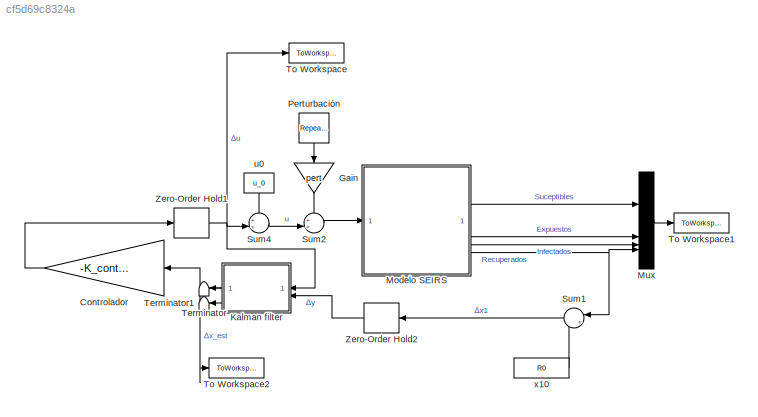
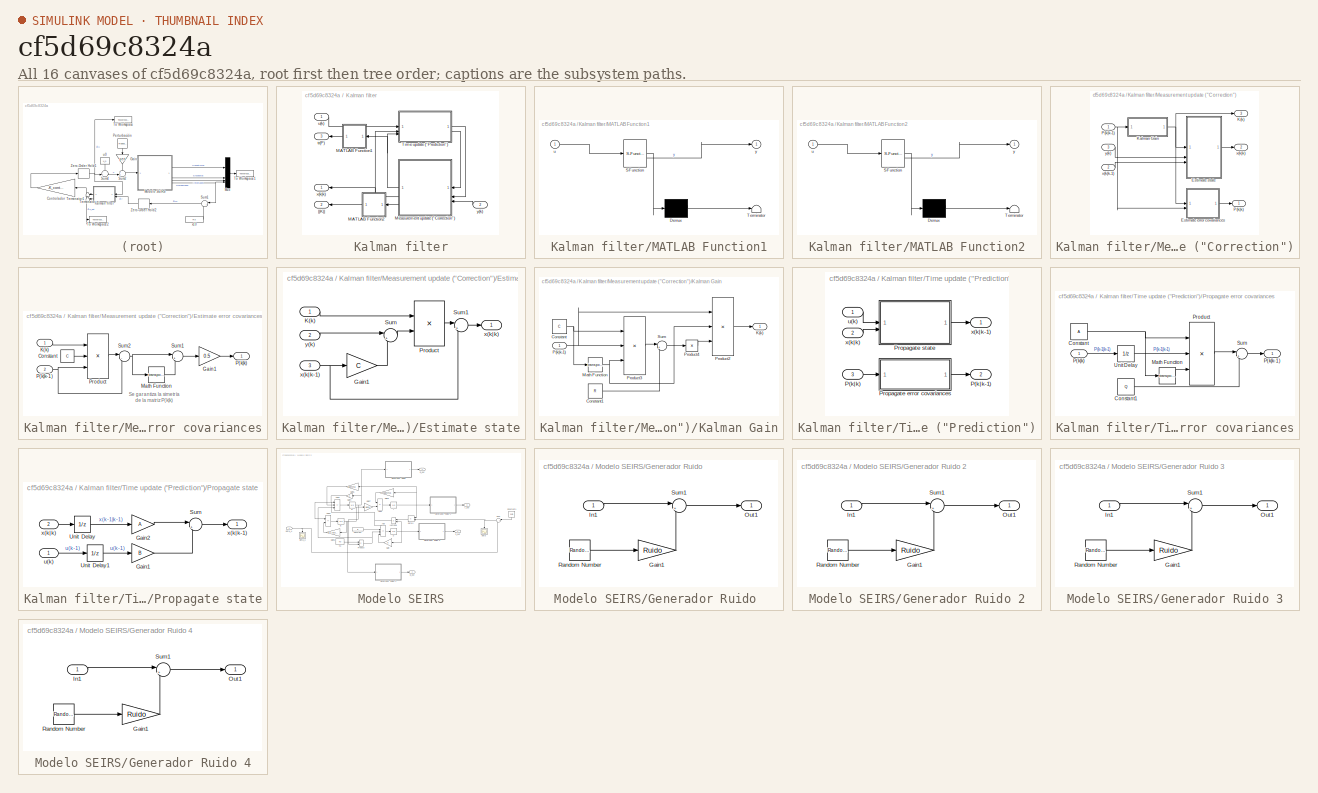
[diagram: thumbnail index - all 16 canvases of the model, root first then tree order]
MODEL slx_cf5d69c8324a
KIND model
CONFIG AbsTol = auto
CONFIG EnableMultiTasking = off
CONFIG FixedStep = auto
CONFIG MaxStep = auto
CONFIG MinStep = auto
CONFIG RelTol = 1e-3
CONFIG SampleTimeConstraint = Unconstrained
CONFIG SolverName = VariableStepAuto
CONFIG StartTime = 0.0
CONFIG StopTime = Dias
WORKSPACE source: mxarray member
WORKSPACE x = [0.0844291205376 0.0972801431163 0.171504041231 0.000911075297271]
BLOCK [Gain] Controlador
  Gain = -K_control
  Multiplication = Matrix(K*u)
BLOCK [Gain] Gain
  Gain = pert
  NameLocation = left
BLOCK [SubSystem] Kalman filter
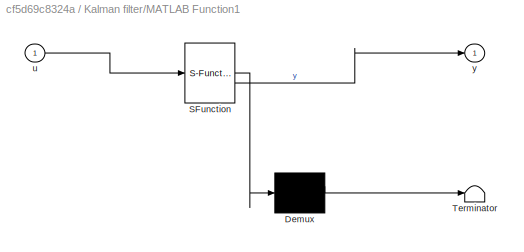
BLOCK [SubSystem] Kalman filter/MATLAB Function1
  ErrorFcn = Stateflow.Translate.translate
  LibrarySourceBlock = simulink/User-Defined\nFunctions/MATLAB Function
  NameLocation = top
  PermitHierarchicalResolution = ExplicitOnly
  SFBlockType = MATLAB Function
  TreatAsAtomicUnit = on
BLOCK [Demux] Kalman filter/MATLAB Function1/ Demux 
  Outputs = 1
BLOCK [S-Function] Kalman filter/MATLAB Function1/ SFunction 
  EnableBusSupport = on
  FunctionName = sf_sfun
  PortCounts = [1 2]
  SFcnIsStateOwnerBlock = off
  SFunctionDeploymentMode = off
  Tag = Stateflow S-Function 2
BLOCK [Terminator] Kalman filter/MATLAB Function1/ Terminator 
BLOCK [Inport] Kalman filter/MATLAB Function1/u
BLOCK [Outport] Kalman filter/MATLAB Function1/y
BLOCK [SubSystem] Kalman filter/MATLAB Function2
  ErrorFcn = Stateflow.Translate.translate
  LibrarySourceBlock = simulink/User-Defined\nFunctions/MATLAB Function
  NameLocation = top
  PermitHierarchicalResolution = ExplicitOnly
  SFBlockType = MATLAB Function
  TreatAsAtomicUnit = on
BLOCK [Demux] Kalman filter/MATLAB Function2/ Demux 
  Outputs = 1
BLOCK [S-Function] Kalman filter/MATLAB Function2/ SFunction 
  EnableBusSupport = on
  FunctionName = sf_sfun
  PortCounts = [1 2]
  SFcnIsStateOwnerBlock = off
  SFunctionDeploymentMode = off
  Tag = Stateflow S-Function 1
BLOCK [Terminator] Kalman filter/MATLAB Function2/ Terminator 
BLOCK [Inport] Kalman filter/MATLAB Function2/u
BLOCK [Outport] Kalman filter/MATLAB Function2/y
BLOCK [SubSystem] Kalman filter/Measurement update ("Correction")
BLOCK [SubSystem] Kalman filter/Measurement update ("Correction")/Estimate error covariances
BLOCK [Constant] Kalman filter/Measurement update ("Correction")/Estimate error covariances/Constant
  SampleTime = Ts
  Value = C
  VectorParams1D = off
BLOCK [Gain] Kalman filter/Measurement update ("Correction")/Estimate error covariances/Gain1
  Gain = 0.5
BLOCK [Inport] Kalman filter/Measurement update ("Correction")/Estimate error covariances/K(k)
BLOCK [Math] Kalman filter/Measurement update ("Correction")/Estimate error covariances/Math Function
  Operator = transpose
  SignedPower = on
BLOCK [Outport] Kalman filter/Measurement update ("Correction")/Estimate error covariances/P(k|k)
BLOCK [Inport] Kalman filter/Measurement update ("Correction")/Estimate error covariances/P(k|k-1)
  Port = 2
BLOCK [Product] Kalman filter/Measurement update ("Correction")/Estimate error covariances/Product
  Inputs = 3
  Multiplication = Matrix(*)
BLOCK [Sum] Kalman filter/Measurement update ("Correction")/Estimate error covariances/Sum1
  Inputs = |++
BLOCK [Sum] Kalman filter/Measurement update ("Correction")/Estimate error covariances/Sum2
  Inputs = |-+
BLOCK [SubSystem] Kalman filter/Measurement update ("Correction")/Estimate state
BLOCK [Gain] Kalman filter/Measurement update ("Correction")/Estimate state/Gain1
  Gain = C
  Multiplication = Matrix(K*u)
BLOCK [Inport] Kalman filter/Measurement update ("Correction")/Estimate state/K(k)
BLOCK [Product] Kalman filter/Measurement update ("Correction")/Estimate state/Product
  Multiplication = Matrix(*)
BLOCK [Sum] Kalman filter/Measurement update ("Correction")/Estimate state/Sum
  Inputs = |+-
BLOCK [Sum] Kalman filter/Measurement update ("Correction")/Estimate state/Sum1
  Inputs = |++
BLOCK [Outport] Kalman filter/Measurement update ("Correction")/Estimate state/x(k|k)
BLOCK [Inport] Kalman filter/Measurement update ("Correction")/Estimate state/x(k|k-1)
  Port = 3
BLOCK [Inport] Kalman filter/Measurement update ("Correction")/Estimate state/y(k)
  Port = 2
BLOCK [Outport] Kalman filter/Measurement update ("Correction")/K(k)
  Port = 3
BLOCK [SubSystem] Kalman filter/Measurement update ("Correction")/Kalman Gain
BLOCK [Constant] Kalman filter/Measurement update ("Correction")/Kalman Gain/Constant
  SampleTime = Ts
  Value = C
  VectorParams1D = off
BLOCK [Constant] Kalman filter/Measurement update ("Correction")/Kalman Gain/Constant1
  SampleTime = Ts
  Value = R
BLOCK [Outport] Kalman filter/Measurement update ("Correction")/Kalman Gain/K(k)
BLOCK [Math] Kalman filter/Measurement update ("Correction")/Kalman Gain/Math Function
  Operator = transpose
  SignedPower = on
BLOCK [Inport] Kalman filter/Measurement update ("Correction")/Kalman Gain/P(k|k-1)
BLOCK [Product] Kalman filter/Measurement update ("Correction")/Kalman Gain/Product2
  Inputs = 3
  Multiplication = Matrix(*)
BLOCK [Product] Kalman filter/Measurement update ("Correction")/Kalman Gain/Product3
  Inputs = 3
  Multiplication = Matrix(*)
BLOCK [Product] Kalman filter/Measurement update ("Correction")/Kalman Gain/Product4
  Inputs = /
  Multiplication = Matrix(*)
BLOCK [Sum] Kalman filter/Measurement update ("Correction")/Kalman Gain/Sum
  Inputs = |++
BLOCK [Outport] Kalman filter/Measurement update ("Correction")/P(k|k)
BLOCK [Inport] Kalman filter/Measurement update ("Correction")/P(k|k-1)
BLOCK [Outport] Kalman filter/Measurement update ("Correction")/x(k|k)
  Port = 2
BLOCK [Inport] Kalman filter/Measurement update ("Correction")/x(k|k-1)
  Port = 2
BLOCK [Inport] Kalman filter/Measurement update ("Correction")/y(k)
  Port = 3
BLOCK [SubSystem] Kalman filter/Time update ("Prediction")
  NameLocation = top
BLOCK [Inport] Kalman filter/Time update ("Prediction")/P(k|k)
  Port = 3
BLOCK [Outport] Kalman filter/Time update ("Prediction")/P(k|k-1)
  Port = 2
BLOCK [SubSystem] Kalman filter/Time update ("Prediction")/Propagate error covariances
BLOCK [Constant] Kalman filter/Time update ("Prediction")/Propagate error covariances/Constant
  SampleTime = Ts
  Value = A
BLOCK [Constant] Kalman filter/Time update ("Prediction")/Propagate error covariances/Constant1
  SampleTime = Ts
  Value = Q
BLOCK [Math] Kalman filter/Time update ("Prediction")/Propagate error covariances/Math Function
  Operator = transpose
  SignedPower = on
BLOCK [Inport] Kalman filter/Time update ("Prediction")/Propagate error covariances/P(k|k)
BLOCK [Outport] Kalman filter/Time update ("Prediction")/Propagate error covariances/P(k|k-1)
BLOCK [Product] Kalman filter/Time update ("Prediction")/Propagate error covariances/Product
  Inputs = 3
  Multiplication = Matrix(*)
  RndMeth = Zero
  SampleTime = Ts
BLOCK [Sum] Kalman filter/Time update ("Prediction")/Propagate error covariances/Sum
  Inputs = |++
BLOCK [UnitDelay] Kalman filter/Time update ("Prediction")/Propagate error covariances/Unit Delay
  HasFrameUpgradeWarning = on
  InitialCondition = P0
  SampleTime = Ts
BLOCK [SubSystem] Kalman filter/Time update ("Prediction")/Propagate state
BLOCK [Gain] Kalman filter/Time update ("Prediction")/Propagate state/Gain1
  Gain = B
  Multiplication = Matrix(K*u)
BLOCK [Gain] Kalman filter/Time update ("Prediction")/Propagate state/Gain2
  Gain = A
  Multiplication = Matrix(K*u)
BLOCK [Sum] Kalman filter/Time update ("Prediction")/Propagate state/Sum
  Inputs = |++
BLOCK [UnitDelay] Kalman filter/Time update ("Prediction")/Propagate state/Unit Delay
  HasFrameUpgradeWarning = on
  InitialCondition = x0
  SampleTime = Ts
BLOCK [UnitDelay] Kalman filter/Time update ("Prediction")/Propagate state/Unit Delay1
  HasFrameUpgradeWarning = on
  SampleTime = Ts
BLOCK [Inport] Kalman filter/Time update ("Prediction")/Propagate state/u(k)
BLOCK [Inport] Kalman filter/Time update ("Prediction")/Propagate state/x(k|k)
  Port = 2
BLOCK [Outport] Kalman filter/Time update ("Prediction")/Propagate state/x(k|k-1)
BLOCK [Inport] Kalman filter/Time update ("Prediction")/u(k)
BLOCK [Inport] Kalman filter/Time update ("Prediction")/x(k|k)
  Port = 2
BLOCK [Outport] Kalman filter/Time update ("Prediction")/x(k|k-1)
BLOCK [Outport] Kalman filter/tr(P)
  Port = 3
BLOCK [Inport] Kalman filter/u(k)
BLOCK [Outport] Kalman filter/x(k|k)
BLOCK [Inport] Kalman filter/y(k)
  NameLocation = top
  Port = 2
BLOCK [Outport] Kalman filter/||K||
  Port = 2
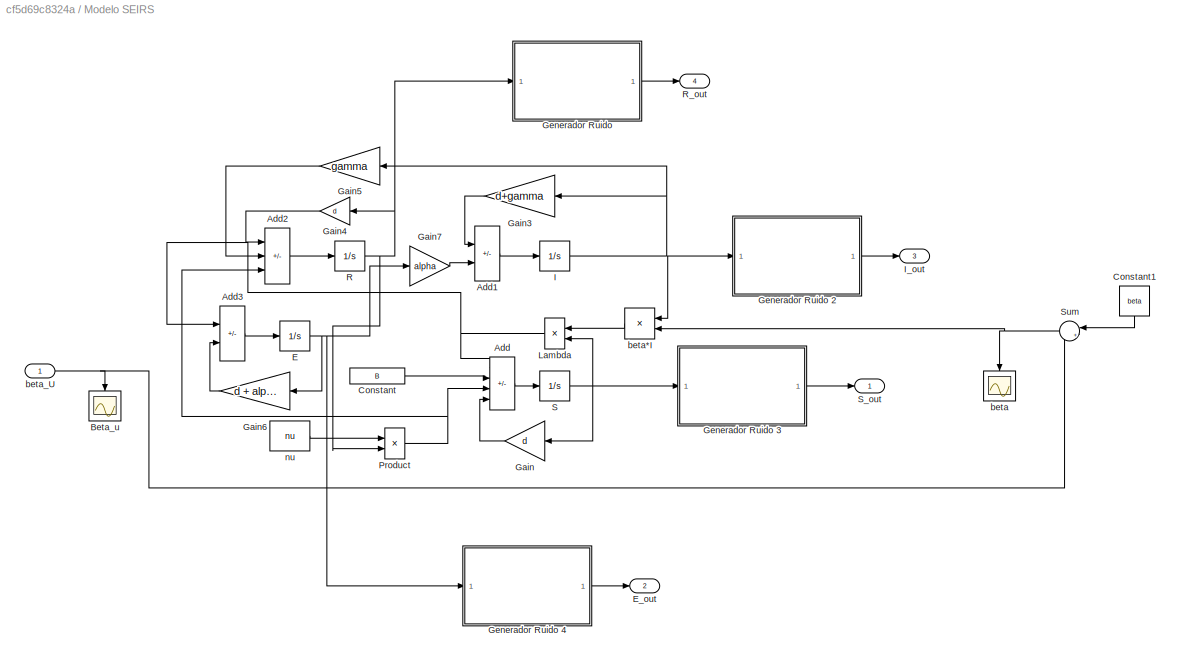
BLOCK [SubSystem] Modelo SEIRS
BLOCK [Sum] Modelo SEIRS/Add
  IconShape = rectangular
  Inputs = -++-
BLOCK [Sum] Modelo SEIRS/Add1
  IconShape = rectangular
  Inputs = -+
BLOCK [Sum] Modelo SEIRS/Add2
  IconShape = rectangular
  Inputs = -+-
BLOCK [Sum] Modelo SEIRS/Add3
  IconShape = rectangular
  Inputs = +-
BLOCK [Scope] Modelo SEIRS/Beta_u
  Floating = off
  NumInputPorts = 1
  ScopeSpecificationString = Simulink.scopes.TimeScopeBlockCfg('CurrentConfiguration', extmgr.ConfigurationSet(extmgr.Configuration('Core','General UI',true),extmgr.Configuration('Core','Source UI',true),extmgr.Configuration('Sources','WiredSimulink',true,'DataLoggingVariableName','ScopeData2'),extmgr.Configuration('Visuals','Time Domain',true,'SerializedDisplays',{struct('MinYLimReal','0.25','MaxYLimReal','0.75','YLabelReal'...<+1484ch>
BLOCK [Constant] Modelo SEIRS/Constant
  Value = B
BLOCK [Constant] Modelo SEIRS/Constant1
  NameLocation = left
  Value = beta
BLOCK [Integrator] Modelo SEIRS/E
  InitialCondition = ci(2)
  LimitOutput = on
  LowerSaturationLimit = 0
BLOCK [Outport] Modelo SEIRS/E_out
  Port = 2
BLOCK [Gain] Modelo SEIRS/Gain
  Gain = d
  NameLocation = top
BLOCK [Gain] Modelo SEIRS/Gain3
  Gain = d+gamma
  NameLocation = top
BLOCK [Gain] Modelo SEIRS/Gain4
  Gain = d
  NameLocation = top
BLOCK [Gain] Modelo SEIRS/Gain5
  Gain = gamma
  NameLocation = top
BLOCK [Gain] Modelo SEIRS/Gain6
  Gain = d + alpha
  NameLocation = top
BLOCK [Gain] Modelo SEIRS/Gain7
  Gain = alpha
BLOCK [SubSystem] Modelo SEIRS/Generador Ruido 
BLOCK [Gain] Modelo SEIRS/Generador Ruido /Gain1
  Gain = Ruido
BLOCK [Inport] Modelo SEIRS/Generador Ruido /In1
BLOCK [Outport] Modelo SEIRS/Generador Ruido /Out1
BLOCK [RandomNumber] Modelo SEIRS/Generador Ruido /Random Number
  SampleTime = TS
  Seed = 117
  Variance = Var_ruido
BLOCK [Sum] Modelo SEIRS/Generador Ruido /Sum1
  Inputs = |++
BLOCK [SubSystem] Modelo SEIRS/Generador Ruido 2
BLOCK [Gain] Modelo SEIRS/Generador Ruido 2/Gain1
  Gain = Ruido
BLOCK [Inport] Modelo SEIRS/Generador Ruido 2/In1
BLOCK [Outport] Modelo SEIRS/Generador Ruido 2/Out1
BLOCK [RandomNumber] Modelo SEIRS/Generador Ruido 2/Random Number
  SampleTime = TS
  Seed = 117
  Variance = Var_ruido
BLOCK [Sum] Modelo SEIRS/Generador Ruido 2/Sum1
  Inputs = |++
BLOCK [SubSystem] Modelo SEIRS/Generador Ruido 3
BLOCK [Gain] Modelo SEIRS/Generador Ruido 3/Gain1
  Gain = Ruido
BLOCK [Inport] Modelo SEIRS/Generador Ruido 3/In1
BLOCK [Outport] Modelo SEIRS/Generador Ruido 3/Out1
BLOCK [RandomNumber] Modelo SEIRS/Generador Ruido 3/Random Number
  SampleTime = TS
  Seed = 117
  Variance = Var_ruido
BLOCK [Sum] Modelo SEIRS/Generador Ruido 3/Sum1
  Inputs = |++
BLOCK [SubSystem] Modelo SEIRS/Generador Ruido 4
BLOCK [Gain] Modelo SEIRS/Generador Ruido 4/Gain1
  Gain = Ruido
BLOCK [Inport] Modelo SEIRS/Generador Ruido 4/In1
BLOCK [Outport] Modelo SEIRS/Generador Ruido 4/Out1
BLOCK [RandomNumber] Modelo SEIRS/Generador Ruido 4/Random Number
  SampleTime = TS
  Seed = 117
  Variance = Var_ruido
BLOCK [Sum] Modelo SEIRS/Generador Ruido 4/Sum1
  Inputs = |++
BLOCK [Integrator] Modelo SEIRS/I
  InitialCondition = ci(3)
  LimitOutput = on
  LowerSaturationLimit = 0
BLOCK [Outport] Modelo SEIRS/I_out 
  Port = 3
BLOCK [Product] Modelo SEIRS/Lambda
  NameLocation = top
BLOCK [Product] Modelo SEIRS/Product
BLOCK [Integrator] Modelo SEIRS/R
  InitialCondition = ci(4)
  LimitOutput = on
  LowerSaturationLimit = 0
BLOCK [Outport] Modelo SEIRS/R_out
  Port = 4
BLOCK [Integrator] Modelo SEIRS/S
  InitialCondition = ci(1)
  LimitOutput = on
  LowerSaturationLimit = 0
BLOCK [Outport] Modelo SEIRS/S_out
BLOCK [Sum] Modelo SEIRS/Sum
  Inputs = |++
  NameLocation = top
BLOCK [Scope] Modelo SEIRS/beta
  Floating = off
  NumInputPorts = 1
  ScopeSpecificationString = Simulink.scopes.TimeScopeBlockCfg('CurrentConfiguration', extmgr.ConfigurationSet(extmgr.Configuration('Core','General UI',true),extmgr.Configuration('Core','Source UI',true),extmgr.Configuration('Sources','WiredSimulink',true,'DataLoggingVariableName','ScopeData1'),extmgr.Configuration('Visuals','Time Domain',true,'SerializedDisplays',{struct('MinYLimReal','0.1','MaxYLimReal','0.3','YLabelReal','...<+1382ch>
BLOCK [Product] Modelo SEIRS/beta*I
  NameLocation = top
BLOCK [Inport] Modelo SEIRS/beta_U
BLOCK [Constant] Modelo SEIRS/nu
  Value = nu
BLOCK [Mux] Mux
  DisplayOption = bar
BLOCK [Reference] Perturbación  REF=simulink/Sources/Repeating
Sequence
Interpolated
  NameLocation = right
  SourceBlock = simulink/Sources/Repeating\nSequence\nInterpolated
  SourceType = Repeating Sequence Interpolated
BLOCK [Sum] Sum1
  Inputs = |+-
  NameLocation = top
BLOCK [Sum] Sum2
  Inputs = ++|
BLOCK [Sum] Sum4
  Inputs = ++|
BLOCK [Terminator] Terminator
  NameLocation = top
BLOCK [Terminator] Terminator1
  NameLocation = top
BLOCK [ToWorkspace] To Workspace
  MaxDataPoints = inf
  SampleTime = Ts
  SaveFormat = Structure With Time
  VariableName = du
BLOCK [ToWorkspace] To Workspace1
  MaxDataPoints = inf
  SampleTime = Ts
  SaveFormat = Structure With Time
  VariableName = x
BLOCK [ToWorkspace] To Workspace2
  MaxDataPoints = inf
  SampleTime = Ts
  SaveFormat = Structure With Time
  VariableName = dx_est
BLOCK [ZeroOrderHold] Zero-Order Hold1
  SampleTime = Ts
BLOCK [ZeroOrderHold] Zero-Order Hold2
  NameLocation = top
  SampleTime = Ts
BLOCK [Constant] u0
  NameLocation = left
  Value = u_0
BLOCK [Constant] x10
  NameLocation = top
  Value = R0
ANNOTATION Kalman filter/Measurement update ("Correction")/Estimate error covariances: Se garantiza la simetría de la matriz P(k|k)
LINE Controlador:1 -> Zero-Order Hold1:1
LINE Gain:1 -> Sum2:1
LINE Kalman filter/MATLAB Function1:1 -> Kalman filter/tr(P):1
LINE Kalman filter/MATLAB Function2:1 -> Kalman filter/||K||:1
LINE Kalman filter/Measurement update ("Correction")/Estimate error covariances/Constant:1 -> Kalman filter/Measurement update ("Correction")/Estimate error covariances/Product:2
LINE Kalman filter/Measurement update ("Correction")/Estimate error covariances/Gain1:1 -> Kalman filter/Measurement update ("Correction")/Estimate error covariances/P(k|k):1
LINE Kalman filter/Measurement update ("Correction")/Estimate error covariances/K(k):1 -> Kalman filter/Measurement update ("Correction")/Estimate error covariances/Product:1
LINE Kalman filter/Measurement update ("Correction")/Estimate error covariances/Math Function:1 -> Kalman filter/Measurement update ("Correction")/Estimate error covariances/Sum1:2
NET Kalman filter/Measurement update ("Correction")/Estimate error covariances/P(k|k-1):1 -> Kalman filter/Measurement update ("Correction")/Estimate error covariances/Product:3, Kalman filter/Measurement update ("Correction")/Estimate error covariances/Sum2:2
LINE Kalman filter/Measurement update ("Correction")/Estimate error covariances/Product:1 -> Kalman filter/Measurement update ("Correction")/Estimate error covariances/Sum2:1
LINE Kalman filter/Measurement update ("Correction")/Estimate error covariances/Sum1:1 -> Kalman filter/Measurement update ("Correction")/Estimate error covariances/Gain1:1
NET Kalman filter/Measurement update ("Correction")/Estimate error covariances/Sum2:1 -> Kalman filter/Measurement update ("Correction")/Estimate error covariances/Math Function:1, Kalman filter/Measurement update ("Correction")/Estimate error covariances/Sum1:1
LINE Kalman filter/Measurement update ("Correction")/Estimate error covariances:1 -> Kalman filter/Measurement update ("Correction")/P(k|k):1
LINE Kalman filter/Measurement update ("Correction")/Estimate state/Gain1:1 -> Kalman filter/Measurement update ("Correction")/Estimate state/Sum:2
LINE Kalman filter/Measurement update ("Correction")/Estimate state/K(k):1 -> Kalman filter/Measurement update ("Correction")/Estimate state/Product:1
LINE Kalman filter/Measurement update ("Correction")/Estimate state/Product:1 -> Kalman filter/Measurement update ("Correction")/Estimate state/Sum1:1
LINE Kalman filter/Measurement update ("Correction")/Estimate state/Sum1:1 -> Kalman filter/Measurement update ("Correction")/Estimate state/x(k|k):1
LINE Kalman filter/Measurement update ("Correction")/Estimate state/Sum:1 -> Kalman filter/Measurement update ("Correction")/Estimate state/Product:2
NET Kalman filter/Measurement update ("Correction")/Estimate state/x(k|k-1):1 -> Kalman filter/Measurement update ("Correction")/Estimate state/Gain1:1, Kalman filter/Measurement update ("Correction")/Estimate state/Sum1:2
LINE Kalman filter/Measurement update ("Correction")/Estimate state/y(k):1 -> Kalman filter/Measurement update ("Correction")/Estimate state/Sum:1
LINE Kalman filter/Measurement update ("Correction")/Estimate state:1 -> Kalman filter/Measurement update ("Correction")/x(k|k):1
LINE Kalman filter/Measurement update ("Correction")/Kalman Gain/Constant1:1 -> Kalman filter/Measurement update ("Correction")/Kalman Gain/Sum:2
NET Kalman filter/Measurement update ("Correction")/Kalman Gain/Constant:1 -> Kalman filter/Measurement update ("Correction")/Kalman Gain/Math Function:1, Kalman filter/Measurement update ("Correction")/Kalman Gain/Product3:1
NET Kalman filter/Measurement update ("Correction")/Kalman Gain/Math Function:1 -> Kalman filter/Measurement update ("Correction")/Kalman Gain/Product2:2, Kalman filter/Measurement update ("Correction")/Kalman Gain/Product3:3
NET Kalman filter/Measurement update ("Correction")/Kalman Gain/P(k|k-1):1 -> Kalman filter/Measurement update ("Correction")/Kalman Gain/Product2:1, Kalman filter/Measurement update ("Correction")/Kalman Gain/Product3:2
LINE Kalman filter/Measurement update ("Correction")/Kalman Gain/Product2:1 -> Kalman filter/Measurement update ("Correction")/Kalman Gain/K(k):1
LINE Kalman filter/Measurement update ("Correction")/Kalman Gain/Product3:1 -> Kalman filter/Measurement update ("Correction")/Kalman Gain/Sum:1
LINE Kalman filter/Measurement update ("Correction")/Kalman Gain/Product4:1 -> Kalman filter/Measurement update ("Correction")/Kalman Gain/Product2:3
LINE Kalman filter/Measurement update ("Correction")/Kalman Gain/Sum:1 -> Kalman filter/Measurement update ("Correction")/Kalman Gain/Product4:1
NET Kalman filter/Measurement update ("Correction")/Kalman Gain:1 -> Kalman filter/Measurement update ("Correction")/Estimate error covariances:1, Kalman filter/Measurement update ("Correction")/Estimate state:1, Kalman filter/Measurement update ("Correction")/K(k):1
NET Kalman filter/Measurement update ("Correction")/P(k|k-1):1 -> Kalman filter/Measurement update ("Correction")/Estimate error covariances:2, Kalman filter/Measurement update ("Correction")/Kalman Gain:1
LINE Kalman filter/Measurement update ("Correction")/x(k|k-1):1 -> Kalman filter/Measurement update ("Correction")/Estimate state:3
LINE Kalman filter/Measurement update ("Correction")/y(k):1 -> Kalman filter/Measurement update ("Correction")/Estimate state:2
NET Kalman filter/Measurement update ("Correction"):1 -> Kalman filter/MATLAB Function1:1, Kalman filter/Time update ("Prediction"):3
NET Kalman filter/Measurement update ("Correction"):2 -> Kalman filter/Time update ("Prediction"):2, Kalman filter/x(k|k):1
LINE Kalman filter/Measurement update ("Correction"):3 -> Kalman filter/MATLAB Function2:1
LINE Kalman filter/Time update ("Prediction")/P(k|k):1 -> Kalman filter/Time update ("Prediction")/Propagate error covariances:1
LINE Kalman filter/Time update ("Prediction")/Propagate error covariances/Constant1:1 -> Kalman filter/Time update ("Prediction")/Propagate error covariances/Sum:2
NET Kalman filter/Time update ("Prediction")/Propagate error covariances/Constant:1 -> Kalman filter/Time update ("Prediction")/Propagate error covariances/Math Function:1, Kalman filter/Time update ("Prediction")/Propagate error covariances/Product:1
LINE Kalman filter/Time update ("Prediction")/Propagate error covariances/Math Function:1 -> Kalman filter/Time update ("Prediction")/Propagate error covariances/Product:3
LINE Kalman filter/Time update ("Prediction")/Propagate error covariances/P(k|k):1 -> Kalman filter/Time update ("Prediction")/Propagate error covariances/Unit Delay:1
LINE Kalman filter/Time update ("Prediction")/Propagate error covariances/Product:1 -> Kalman filter/Time update ("Prediction")/Propagate error covariances/Sum:1
LINE Kalman filter/Time update ("Prediction")/Propagate error covariances/Sum:1 -> Kalman filter/Time update ("Prediction")/Propagate error covariances/P(k|k-1):1
LINE Kalman filter/Time update ("Prediction")/Propagate error covariances/Unit Delay:1 -> Kalman filter/Time update ("Prediction")/Propagate error covariances/Product:2
LINE Kalman filter/Time update ("Prediction")/Propagate error covariances:1 -> Kalman filter/Time update ("Prediction")/P(k|k-1):1
LINE Kalman filter/Time update ("Prediction")/Propagate state/Gain1:1 -> Kalman filter/Time update ("Prediction")/Propagate state/Sum:2
LINE Kalman filter/Time update ("Prediction")/Propagate state/Gain2:1 -> Kalman filter/Time update ("Prediction")/Propagate state/Sum:1
LINE Kalman filter/Time update ("Prediction")/Propagate state/Sum:1 -> Kalman filter/Time update ("Prediction")/Propagate state/x(k|k-1):1
LINE Kalman filter/Time update ("Prediction")/Propagate state/Unit Delay1:1 -> Kalman filter/Time update ("Prediction")/Propagate state/Gain1:1
LINE Kalman filter/Time update ("Prediction")/Propagate state/Unit Delay:1 -> Kalman filter/Time update ("Prediction")/Propagate state/Gain2:1
LINE Kalman filter/Time update ("Prediction")/Propagate state/u(k):1 -> Kalman filter/Time update ("Prediction")/Propagate state/Unit Delay1:1
LINE Kalman filter/Time update ("Prediction")/Propagate state/x(k|k):1 -> Kalman filter/Time update ("Prediction")/Propagate state/Unit Delay:1
LINE Kalman filter/Time update ("Prediction")/Propagate state:1 -> Kalman filter/Time update ("Prediction")/x(k|k-1):1
LINE Kalman filter/Time update ("Prediction")/u(k):1 -> Kalman filter/Time update ("Prediction")/Propagate state:1
LINE Kalman filter/Time update ("Prediction")/x(k|k):1 -> Kalman filter/Time update ("Prediction")/Propagate state:2
LINE Kalman filter/Time update ("Prediction"):1 -> Kalman filter/Measurement update ("Correction"):2
LINE Kalman filter/Time update ("Prediction"):2 -> Kalman filter/Measurement update ("Correction"):1
LINE Kalman filter/u(k):1 -> Kalman filter/Time update ("Prediction"):1
LINE Kalman filter/y(k):1 -> Kalman filter/Measurement update ("Correction"):3
NET Kalman filter:1 -> Controlador:1, To Workspace2:1
LINE Kalman filter:2 -> Terminator:1
LINE Kalman filter:3 -> Terminator1:1
LINE Modelo SEIRS/Add1:1 -> Modelo SEIRS/I:1
LINE Modelo SEIRS/Add2:1 -> Modelo SEIRS/R:1
LINE Modelo SEIRS/Add3:1 -> Modelo SEIRS/E:1
LINE Modelo SEIRS/Add:1 -> Modelo SEIRS/S:1
LINE Modelo SEIRS/Constant1:1 -> Modelo SEIRS/Sum:1
LINE Modelo SEIRS/Constant:1 -> Modelo SEIRS/Add:2
NET Modelo SEIRS/E:1 -> Modelo SEIRS/Gain6:1, Modelo SEIRS/Gain7:1, Modelo SEIRS/Generador Ruido 4:1
LINE Modelo SEIRS/Gain3:1 -> Modelo SEIRS/Add1:1
LINE Modelo SEIRS/Gain4:1 -> Modelo SEIRS/Add2:1
LINE Modelo SEIRS/Gain5:1 -> Modelo SEIRS/Add2:2
LINE Modelo SEIRS/Gain6:1 -> Modelo SEIRS/Add3:2
LINE Modelo SEIRS/Gain7:1 -> Modelo SEIRS/Add1:2
LINE Modelo SEIRS/Gain:1 -> Modelo SEIRS/Add:4
LINE Modelo SEIRS/Generador Ruido /Gain1:1 -> Modelo SEIRS/Generador Ruido /Sum1:2
LINE Modelo SEIRS/Generador Ruido /In1:1 -> Modelo SEIRS/Generador Ruido /Sum1:1
LINE Modelo SEIRS/Generador Ruido /Random Number:1 -> Modelo SEIRS/Generador Ruido /Gain1:1
LINE Modelo SEIRS/Generador Ruido /Sum1:1 -> Modelo SEIRS/Generador Ruido /Out1:1
LINE Modelo SEIRS/Generador Ruido 2/Gain1:1 -> Modelo SEIRS/Generador Ruido 2/Sum1:2
LINE Modelo SEIRS/Generador Ruido 2/In1:1 -> Modelo SEIRS/Generador Ruido 2/Sum1:1
LINE Modelo SEIRS/Generador Ruido 2/Random Number:1 -> Modelo SEIRS/Generador Ruido 2/Gain1:1
LINE Modelo SEIRS/Generador Ruido 2/Sum1:1 -> Modelo SEIRS/Generador Ruido 2/Out1:1
LINE Modelo SEIRS/Generador Ruido 2:1 -> Modelo SEIRS/I_out :1
LINE Modelo SEIRS/Generador Ruido 3/Gain1:1 -> Modelo SEIRS/Generador Ruido 3/Sum1:2
LINE Modelo SEIRS/Generador Ruido 3/In1:1 -> Modelo SEIRS/Generador Ruido 3/Sum1:1
LINE Modelo SEIRS/Generador Ruido 3/Random Number:1 -> Modelo SEIRS/Generador Ruido 3/Gain1:1
LINE Modelo SEIRS/Generador Ruido 3/Sum1:1 -> Modelo SEIRS/Generador Ruido 3/Out1:1
LINE Modelo SEIRS/Generador Ruido 3:1 -> Modelo SEIRS/S_out:1
LINE Modelo SEIRS/Generador Ruido 4/Gain1:1 -> Modelo SEIRS/Generador Ruido 4/Sum1:2
LINE Modelo SEIRS/Generador Ruido 4/In1:1 -> Modelo SEIRS/Generador Ruido 4/Sum1:1
LINE Modelo SEIRS/Generador Ruido 4/Random Number:1 -> Modelo SEIRS/Generador Ruido 4/Gain1:1
LINE Modelo SEIRS/Generador Ruido 4/Sum1:1 -> Modelo SEIRS/Generador Ruido 4/Out1:1
LINE Modelo SEIRS/Generador Ruido 4:1 -> Modelo SEIRS/E_out:1
LINE Modelo SEIRS/Generador Ruido :1 -> Modelo SEIRS/R_out:1
NET Modelo SEIRS/I:1 -> Modelo SEIRS/Gain3:1, Modelo SEIRS/Gain5:1, Modelo SEIRS/Generador Ruido 2:1, Modelo SEIRS/beta*I:1
NET Modelo SEIRS/Lambda:1 -> Modelo SEIRS/Add3:1, Modelo SEIRS/Add:1
NET Modelo SEIRS/Product:1 -> Modelo SEIRS/Add2:3, Modelo SEIRS/Add:3
NET Modelo SEIRS/R:1 -> Modelo SEIRS/Gain4:1, Modelo SEIRS/Generador Ruido :1, Modelo SEIRS/Product:2
NET Modelo SEIRS/S:1 -> Modelo SEIRS/Gain:1, Modelo SEIRS/Generador Ruido 3:1, Modelo SEIRS/Lambda:2
NET Modelo SEIRS/Sum:1 -> Modelo SEIRS/beta*I:2, Modelo SEIRS/beta:1
LINE Modelo SEIRS/beta*I:1 -> Modelo SEIRS/Lambda:1
NET Modelo SEIRS/beta_U:1 -> Modelo SEIRS/Beta_u:1, Modelo SEIRS/Sum:2
LINE Modelo SEIRS/nu:1 -> Modelo SEIRS/Product:1
LINE Modelo SEIRS:1 -> Mux:1
LINE Modelo SEIRS:2 -> Mux:2
LINE Modelo SEIRS:3 -> Mux:3
NET Modelo SEIRS:4 -> Mux:4, Sum1:1
LINE Mux:1 -> To Workspace1:1
LINE Perturbación:1 -> Gain:1
LINE Sum1:1 -> Zero-Order Hold2:1
LINE Sum2:1 -> Modelo SEIRS:1
LINE Sum4:1 -> Sum2:2
NET Zero-Order Hold1:1 -> Kalman filter:1, Sum4:2, To Workspace:1
LINE Zero-Order Hold2:1 -> Kalman filter:2
LINE u0:1 -> Sum4:1
LINE x10:1 -> Sum1:2
note: NET lines group one-source signal fan-out (src -> all destinations, sorted); 1:1 wires keep LINE
CHART Kalman filter/MATLAB Function1 states=1 transitions=1
  STATE_LABEL 'eML_blk_kernel()'
  STATE_LABEL 'SCRIPT:\nfunction y = fcn(u)\ny = trace(u);\n'
CHART Kalman filter/MATLAB Function2 states=1 transitions=1
  STATE_LABEL 'eML_blk_kernel()'
  STATE_LABEL 'SCRIPT:\nfunction y = fcn(u)\ny = norm(u);\n'
CHART  states=0 transitions=0
CHART  states=0 transitions=0
